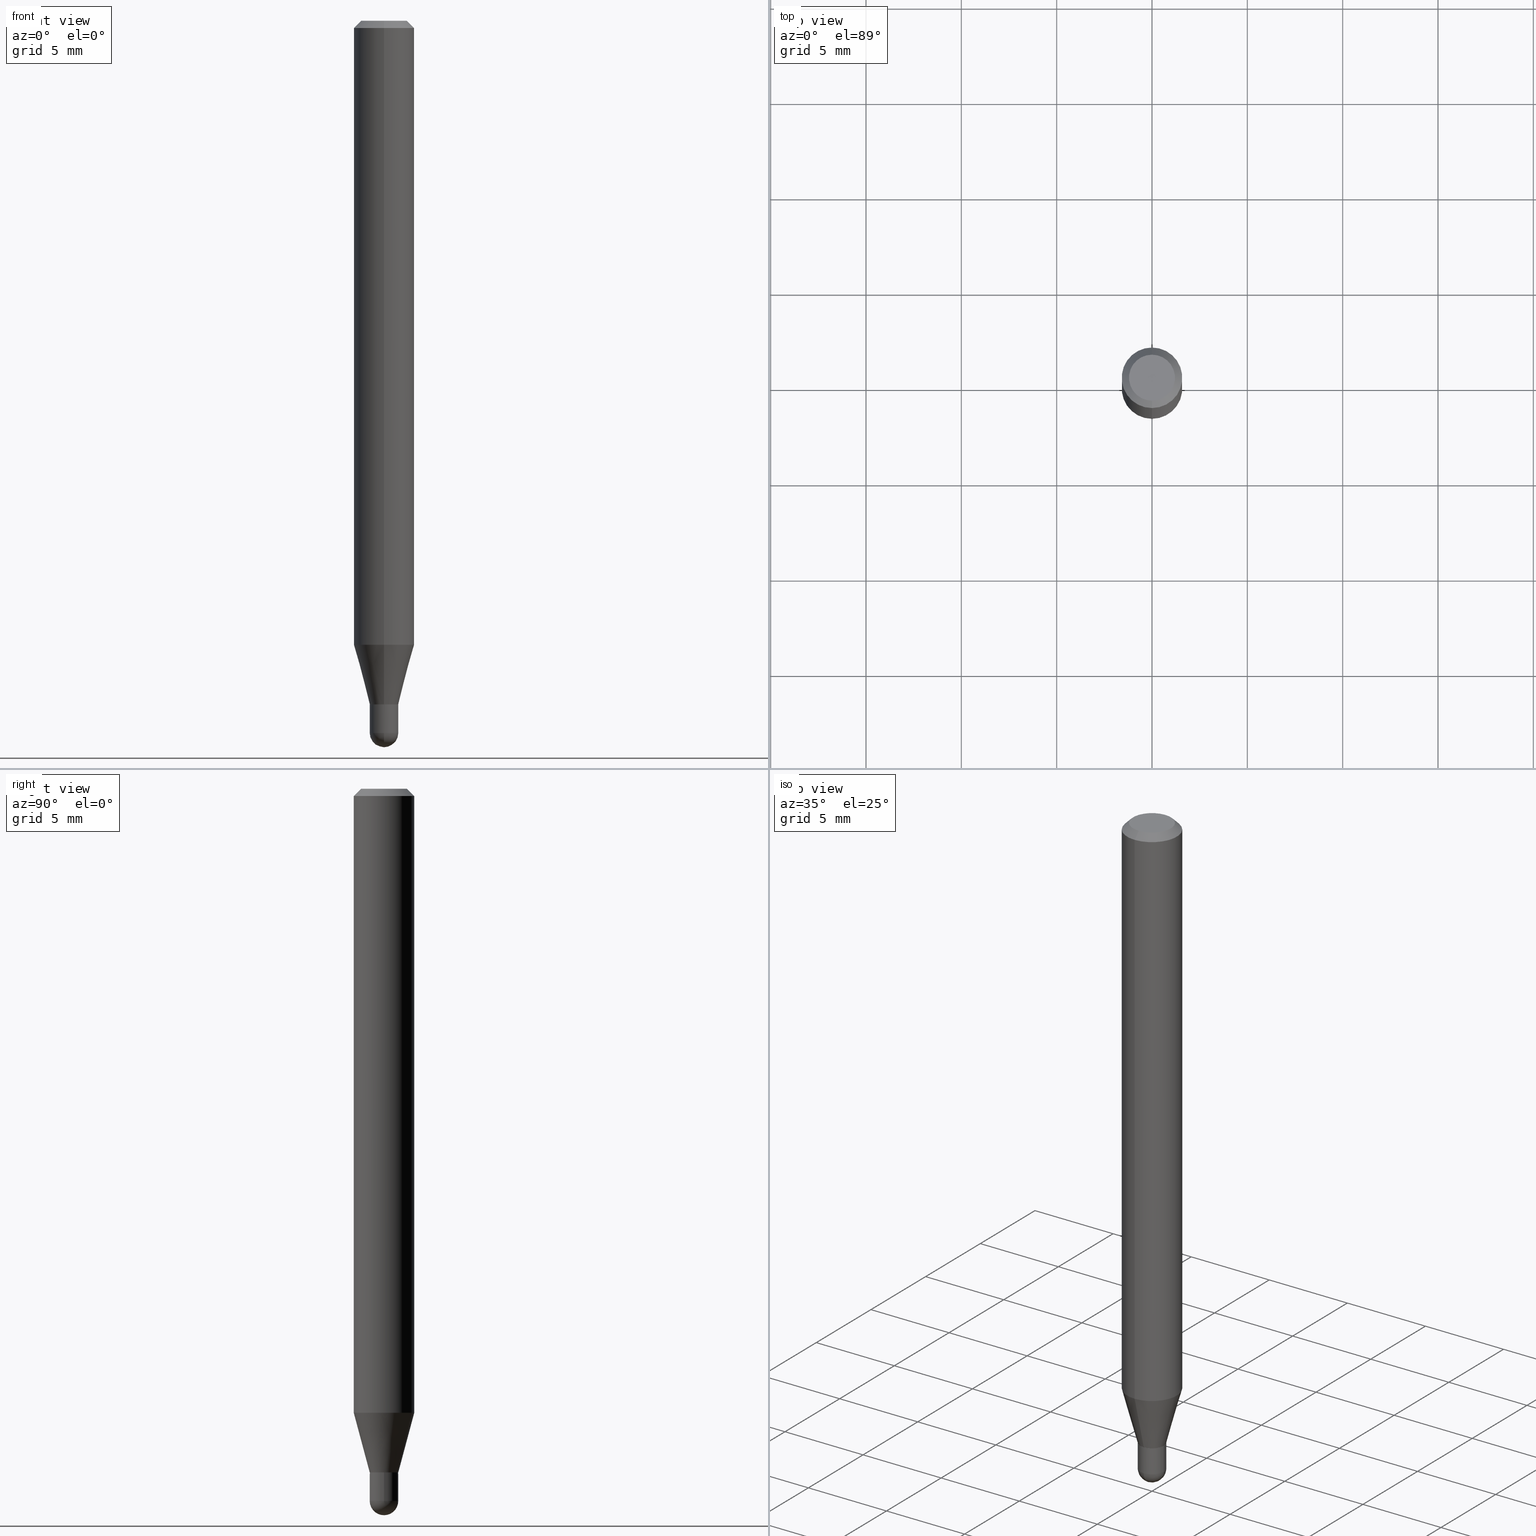
[diagram: canonical four-view strip — front | top / right | iso, engineering-drawing reading convention]
A machine part, canonical four-view strip (front | top / right | iso — engineering-drawing reading convention). The complete STEP part file that produces these views, byte-faithful:
ISO-10303-21;
HEADER;
FILE_DESCRIPTION (( 'STEP AP203' ),
    '1' );
FILE_NAME ('04371.STEP',
    '2024-03-08T18:57:13',
    ( '' ),
    ( '' ),
    'SwSTEP 2.0',
    'SolidWorks 2023',
    '' );
FILE_SCHEMA (( 'CONFIG_CONTROL_DESIGN' ));
ENDSEC;

DATA;
#1 = CARTESIAN_POINT ( 'NONE',  ( 3.596061879495243621E-29, -5.134223308768845522E-15, -1.470500000000000140 ) ) ;
#2 = ORIENTED_EDGE ( 'NONE', *, *, #370, .T. ) ;
#3 = DIRECTION ( 'NONE',  ( 1.000000000000000000, -6.982962677686266711E-15, 4.883557194083112340E-29 ) ) ;
#4 = EDGE_CURVE ( 'NONE', #276, #271, #92, .T. ) ;
#5 = LINE ( 'NONE', #504, #394 ) ;
#6 = CONICAL_SURFACE ( 'NONE', #285, 0.06250000000000000000, 0.7853981633974483900 ) ;
#7 = CARTESIAN_POINT ( 'NONE',  ( 3.596061879495243621E-29, -5.134223308768845522E-15, -1.470500000000000140 ) ) ;
#8 = CARTESIAN_POINT ( 'NONE',  ( 3.668225240666411791E-31, -5.237190458062187369E-17, -0.01500000000000006710 ) ) ;
#9 = DIRECTION ( 'NONE',  ( -1.000000000000000000, 6.982962677686265922E-15, -4.883557194083112340E-29 ) ) ;
#10 = AXIS2_PLACEMENT_3D ( 'NONE', #95, #404, #251 ) ;
#11 = DIRECTION ( 'NONE',  ( 7.105427357601000281E-15, 1.000000000000000000, 0.000000000000000000 ) ) ;
#12 = DIRECTION ( 'NONE',  ( -6.982962677686265922E-15, -1.000000000000000000, 4.370956789862821150E-15 ) ) ;
#13 = CARTESIAN_POINT ( 'NONE',  ( 3.451799951467078440E-29, -4.928196221036497538E-15, -1.411500000000000199 ) ) ;
#14 = APPROVAL_DATE_TIME ( #217, #174 ) ;
#15 = DIRECTION ( 'NONE',  ( 6.982962677686265922E-15, 1.000000000000000000, -3.491460305374776065E-15 ) ) ;
#16 = ORIENTED_EDGE ( 'NONE', *, *, #56, .T. ) ;
#17 = EDGE_LOOP ( 'NONE', ( #25, #2, #331, #28 ) ) ;
#18 = AXIS2_PLACEMENT_3D ( 'NONE', #336, #96, #65 ) ;
#19 = DIRECTION ( 'NONE',  ( -6.982962677686265133E-15, -1.000000000000000000, 0.000000000000000000 ) ) ;
#20 = PERSON_AND_ORGANIZATION_ROLE ( 'creator' ) ;
#21 = VECTOR ( 'NONE', #267, 39.37007874015748143 ) ;
#22 = EDGE_LOOP ( 'NONE', ( #160, #258, #391, #230 ) ) ;
#23 =( GEOMETRIC_REPRESENTATION_CONTEXT ( 3 ) GLOBAL_UNCERTAINTY_ASSIGNED_CONTEXT ( ( #411 ) ) GLOBAL_UNIT_ASSIGNED_CONTEXT ( ( #89, #252, #171 ) ) REPRESENTATION_CONTEXT ( 'NONE', 'WORKASPACE' ) );
#24 = EDGE_CURVE ( 'NONE', #117, #270, #162, .T. ) ;
#25 = ORIENTED_EDGE ( 'NONE', *, *, #101, .F. ) ;
#26 = CARTESIAN_POINT ( 'NONE',  ( -4.364351673553916201E-16, -0.06250000000000000000, 2.182162690859235287E-16 ) ) ;
#27 = APPROVAL ( #319, 'UNSPECIFIED' ) ;
#28 = ORIENTED_EDGE ( 'NONE', *, *, #368, .F. ) ;
#29 = AXIS2_PLACEMENT_3D ( 'NONE', #225, #461, #273 ) ;
#30 = MANIFOLD_SOLID_BREP ( 'Body-Move/Copy2[1]', #62 ) ;
#31 = CARTESIAN_POINT ( 'NONE',  ( 3.668225240666411791E-31, -5.237190458062187369E-17, -0.01500000000000006710 ) ) ;
#32 = DIRECTION ( 'NONE',  ( -2.445483493777596919E-29, 3.491460305374776065E-15, 1.000000000000000000 ) ) ;
#33 = DIRECTION ( 'NONE',  ( -1.000000000000000000, 6.982962677686265922E-15, -4.876176775795935793E-29 ) ) ;
#34 = MANIFOLD_SOLID_BREP ( 'Body-Move/Copy2[2]', #343 ) ;
#35 = CARTESIAN_POINT ( 'NONE',  ( 3.451799951467079561E-29, -4.928196221036499116E-15, -1.411500000000000421 ) ) ;
#36 = PRODUCT_RELATED_PRODUCT_CATEGORY ( 'detail', '', ( #105 ) ) ;
#37 = ORIENTED_EDGE ( 'NONE', *, *, #242, .F. ) ;
#38 = DIRECTION ( 'NONE',  ( 1.000000000000000000, -6.982962677686250933E-15, 0.000000000000000000 ) ) ;
#39 = AXIS2_PLACEMENT_3D ( 'NONE', #224, #508, #38 ) ;
#40 = DIRECTION ( 'NONE',  ( -1.807323732225378260E-15, -0.2588190451025250693, 0.9659258262890670910 ) ) ;
#41 = EDGE_CURVE ( 'NONE', #462, #142, #295, .T. ) ;
#42 = EDGE_CURVE ( 'NONE', #271, #148, #408, .T. ) ;
#43 = DIRECTION ( 'NONE',  ( -6.982962677686265922E-15, -1.000000000000000000, 3.491460305374776460E-15 ) ) ;
#44 = FACE_OUTER_BOUND ( 'NONE', #197, .T. ) ;
#45 = DIMENSIONAL_EXPONENTS ( 1.000000000000000000, 0.000000000000000000, 0.000000000000000000, 0.000000000000000000, 0.000000000000000000, 0.000000000000000000, 0.000000000000000000 ) ;
#46 = AXIS2_PLACEMENT_3D ( 'NONE', #327, #9, #98 ) ;
#47 = CC_DESIGN_APPROVAL ( #27, ( #338 ) ) ;
#48 = FACE_OUTER_BOUND ( 'NONE', #76, .T. ) ;
#49 = DIRECTION ( 'NONE',  ( -6.982962677686266711E-15, -1.000000000000000000, 0.000000000000000000 ) ) ;
#50 = EDGE_CURVE ( 'NONE', #386, #277, #507, .T. ) ;
#51 = CARTESIAN_POINT ( 'NONE',  ( -0.02950000000000000192, -4.821614502223743520E-15, -1.470500000000000140 ) ) ;
#52 = APPROVAL_ROLE ( '' ) ;
#53 = AXIS2_PLACEMENT_3D ( 'NONE', #211, #398, #330 ) ;
#54 = ORIENTED_EDGE ( 'NONE', *, *, #159, .F. ) ;
#55 = DATE_TIME_ROLE ( 'creation_date' ) ;
#56 = EDGE_CURVE ( 'NONE', #142, #238, #399, .T. ) ;
#57 = DIRECTION ( 'NONE',  ( -6.982962677686266711E-15, -1.000000000000000000, 0.000000000000000000 ) ) ;
#58 = CARTESIAN_POINT ( 'NONE',  ( 3.451799951467078440E-29, -4.928196221036497538E-15, -1.411500000000000199 ) ) ;
#59 = DATE_AND_TIME ( #333, #227 ) ;
#60 = VERTEX_POINT ( 'NONE', #444 ) ;
#61 = EDGE_CURVE ( 'NONE', #417, #238, #464, .T. ) ;
#62 = CLOSED_SHELL ( 'NONE', ( #167, #332, #426, #422, #134 ) ) ;
#63 = EDGE_LOOP ( 'NONE', ( #184, #500, #419, #125 ) ) ;
#64 = VECTOR ( 'NONE', #32, 39.37007874015748143 ) ;
#65 = DIRECTION ( 'NONE',  ( 1.000000000000000000, -6.982962677686250144E-15, 0.000000000000000000 ) ) ;
#66 = COORDINATED_UNIVERSAL_TIME_OFFSET ( 5, 0, .BEHIND. ) ;
#67 = VECTOR ( 'NONE', #135, 39.37007874015748143 ) ;
#68 = ORIENTED_EDGE ( 'NONE', *, *, #350, .T. ) ;
#69 = DIRECTION ( 'NONE',  ( -2.445483493777596919E-29, 3.491460305374776460E-15, 1.000000000000000000 ) ) ;
#70 = EDGE_CURVE ( 'NONE', #238, #241, #441, .T. ) ;
#71 = CYLINDRICAL_SURFACE ( 'NONE', #29, 0.02950000000000033151 ) ;
#72 = AXIS2_PLACEMENT_3D ( 'NONE', #304, #493, #130 ) ;
#73 = ORIENTED_EDGE ( 'NONE', *, *, #468, .F. ) ;
#74 = CARTESIAN_POINT ( 'NONE',  ( 4.440892098500942692E-16, 0.06249999999999995143, -0.01500000000000028394 ) ) ;
#75 = CARTESIAN_POINT ( 'NONE',  ( 2.059973989917793540E-16, 0.02949999999999506836, -1.411500000000000199 ) ) ;
#76 = EDGE_LOOP ( 'NONE', ( #501, #161, #347, #306 ) ) ;
#77 = APPLICATION_PROTOCOL_DEFINITION ( 'international standard', 'config_control_design', 1994, #269 ) ;
#78 = ADVANCED_FACE ( 'NONE', ( #469 ), #466, .T. ) ;
#79 = DIRECTION ( 'NONE',  ( -6.982962677686266711E-15, -1.000000000000000000, 0.000000000000000000 ) ) ;
#80 = ORIENTED_EDGE ( 'NONE', *, *, #41, .T. ) ;
#81 = CARTESIAN_POINT ( 'NONE',  ( 4.440892098500937762E-16, 0.06249999999999547584, -1.288342323350233132 ) ) ;
#82 = ORIENTED_EDGE ( 'NONE', *, *, #247, .F. ) ;
#83 = EDGE_LOOP ( 'NONE', ( #158, #473 ) ) ;
#84 = CARTESIAN_POINT ( 'NONE',  ( 0.000000000000000000, 0.000000000000000000, 0.000000000000000000 ) ) ;
#85 = AXIS2_PLACEMENT_3D ( 'NONE', #128, #349, #79 ) ;
#86 = EDGE_LOOP ( 'NONE', ( #189, #413, #231, #318 ) ) ;
#87 = DIRECTION ( 'NONE',  ( -6.982962677686266711E-15, -1.000000000000000000, 0.000000000000000000 ) ) ;
#88 = CARTESIAN_POINT ( 'NONE',  ( 0.000000000000000000, 0.000000000000000000, 0.000000000000000000 ) ) ;
#89 =( CONVERSION_BASED_UNIT ( 'INCH', #438 ) LENGTH_UNIT ( ) NAMED_UNIT ( #45 ) );
#90 = ADVANCED_BREP_SHAPE_REPRESENTATION ( '04371', ( #30, #34, #10 ), #23 ) ;
#91 = AXIS2_PLACEMENT_3D ( 'NONE', #448, #94, #470 ) ;
#92 = LINE ( 'NONE', #415, #274 ) ;
#93 = LOCAL_TIME ( 13, 57, 13.00000000000000000, #66 ) ;
#94 = DIRECTION ( 'NONE',  ( -2.445483493777596919E-29, 3.491460305374776460E-15, 1.000000000000000000 ) ) ;
#95 = CARTESIAN_POINT ( 'NONE',  ( 0.000000000000000000, 0.000000000000000000, 0.000000000000000000 ) ) ;
#96 = DIRECTION ( 'NONE',  ( -2.445468806185136597E-29, 3.491481338843145583E-15, 1.000000000000000000 ) ) ;
#97 = CARTESIAN_POINT ( 'NONE',  ( 3.593539138942164173E-29, -5.137836016826330348E-15, -1.470500000000000140 ) ) ;
#98 = DIRECTION ( 'NONE',  ( -6.982962677686265922E-15, -1.000000000000000000, 0.000000000000000000 ) ) ;
#99 = ADVANCED_FACE ( 'NONE', ( #48 ), #71, .F. ) ;
#100 = APPROVAL_DATE_TIME ( #141, #133 ) ;
#101 = EDGE_CURVE ( 'NONE', #145, #277, #425, .T. ) ;
#102 = AXIS2_PLACEMENT_3D ( 'NONE', #223, #256, #341 ) ;
#103 = VECTOR ( 'NONE', #369, 39.37007874015748143 ) ;
#104 = APPROVAL_STATUS ( 'not_yet_approved' ) ;
#105 = PRODUCT ( '04371', '04371', '', ( #388 ) ) ;
#106 = EDGE_LOOP ( 'NONE', ( #374, #420, #114, #228 ) ) ;
#107 = DIRECTION ( 'NONE',  ( 1.000000000000000000, -6.982962677686266711E-15, 4.883557194083112340E-29 ) ) ;
#108 = CYLINDRICAL_SURFACE ( 'NONE', #335, 0.06250000000000000000 ) ;
#109 = DIRECTION ( 'NONE',  ( -2.445483493777596919E-29, 3.491460305374776460E-15, 1.000000000000000000 ) ) ;
#110 = CALENDAR_DATE ( 2024, 8, 3 ) ;
#111 = VERTEX_POINT ( 'NONE', #196 ) ;
#112 = CARTESIAN_POINT ( 'NONE',  ( -4.364351673553603615E-16, -0.06250000000000453804, -1.288342323350232688 ) ) ;
#113 = CIRCLE ( 'NONE', #85, 0.02950000000000046682 ) ;
#114 = ORIENTED_EDGE ( 'NONE', *, *, #56, .F. ) ;
#115 = ORIENTED_EDGE ( 'NONE', *, *, #261, .T. ) ;
#116 = CARTESIAN_POINT ( 'NONE',  ( 0.02949999999999999845, -5.134223308768844733E-15, -1.411500000000000199 ) ) ;
#117 = VERTEX_POINT ( 'NONE', #191 ) ;
#118 = EDGE_CURVE ( 'NONE', #111, #276, #113, .T. ) ;
#119 = ORIENTED_EDGE ( 'NONE', *, *, #370, .F. ) ;
#120 = DIRECTION ( 'NONE',  ( -6.982962677686266711E-15, -1.000000000000000000, 0.000000000000000000 ) ) ;
#121 = DIRECTION ( 'NONE',  ( -2.445483493777596919E-29, 3.491460305374776460E-15, 1.000000000000000000 ) ) ;
#122 = CARTESIAN_POINT ( 'NONE',  ( 3.668225240666411791E-31, -5.237190458062187369E-17, -0.01500000000000006710 ) ) ;
#123 = ORIENTED_EDGE ( 'NONE', *, *, #201, .T. ) ;
#124 = EDGE_CURVE ( 'NONE', #142, #299, #5, .T. ) ;
#125 = ORIENTED_EDGE ( 'NONE', *, *, #201, .F. ) ;
#126 = FACE_OUTER_BOUND ( 'NONE', #284, .T. ) ;
#127 = DIRECTION ( 'NONE',  ( -2.445483493777596919E-29, 3.491460305374776460E-15, 1.000000000000000000 ) ) ;
#128 = CARTESIAN_POINT ( 'NONE',  ( 3.451799951467078440E-29, -4.928196221036497538E-15, -1.411500000000000199 ) ) ;
#129 = AXIS2_PLACEMENT_3D ( 'NONE', #88, #208, #43 ) ;
#130 = DIRECTION ( 'NONE',  ( -6.982962677686265922E-15, -1.000000000000000000, 0.000000000000000000 ) ) ;
#131 = CARTESIAN_POINT ( 'NONE',  ( 3.451799951467079561E-29, -4.928196221036499116E-15, -1.411500000000000421 ) ) ;
#132 = CARTESIAN_POINT ( 'NONE',  ( 3.593539138942164173E-29, -5.137836016826330348E-15, -1.470500000000000140 ) ) ;
#133 = APPROVAL ( #104, 'UNSPECIFIED' ) ;
#134 = ADVANCED_FACE ( 'NONE', ( #389 ), #509, .T. ) ;
#135 = DIRECTION ( 'NONE',  ( -2.445483493777596919E-29, 3.491460305374776065E-15, 1.000000000000000000 ) ) ;
#136 = EDGE_CURVE ( 'NONE', #241, #462, #326, .T. ) ;
#137 = SPHERICAL_SURFACE ( 'NONE', #296, 0.02950000000000002967 ) ;
#138 = DIRECTION ( 'NONE',  ( -6.982962677686265922E-15, -1.000000000000000000, 3.491460305374776065E-15 ) ) ;
#139 = AXIS2_PLACEMENT_3D ( 'NONE', #122, #109, #354 ) ;
#140 = LOCAL_TIME ( 13, 57, 13.00000000000000000, #337 ) ;
#141 = DATE_AND_TIME ( #221, #93 ) ;
#142 = VERTEX_POINT ( 'NONE', #502 ) ;
#143 = ADVANCED_FACE ( 'NONE', ( #463 ), #385, .T. ) ;
#144 = DATE_AND_TIME ( #492, #140 ) ;
#145 = VERTEX_POINT ( 'NONE', #81 ) ;
#146 = DIRECTION ( 'NONE',  ( -2.445483493777596919E-29, 3.491460305374776065E-15, 1.000000000000000000 ) ) ;
#147 = CIRCLE ( 'NONE', #91, 0.06250000000000000000 ) ;
#148 = VERTEX_POINT ( 'NONE', #234 ) ;
#149 = DIRECTION ( 'NONE',  ( -6.982962677686266711E-15, -1.000000000000000000, 3.491460305374776854E-15 ) ) ;
#150 = ORIENTED_EDGE ( 'NONE', *, *, #42, .F. ) ;
#151 = CARTESIAN_POINT ( 'NONE',  ( 2.078337502098644454E-16, 0.02899999999999506792, -1.411500000000000421 ) ) ;
#152 = EDGE_CURVE ( 'NONE', #270, #117, #265, .T. ) ;
#153 = ORIENTED_EDGE ( 'NONE', *, *, #361, .T. ) ;
#154 = PERSON_AND_ORGANIZATION ( #481, #180 ) ;
#155 = ORIENTED_EDGE ( 'NONE', *, *, #50, .F. ) ;
#156 = AXIS2_PLACEMENT_3D ( 'NONE', #97, #245, #11 ) ;
#157 = AXIS2_PLACEMENT_3D ( 'NONE', #405, #255, #12 ) ;
#158 = ORIENTED_EDGE ( 'NONE', *, *, #24, .F. ) ;
#159 = EDGE_CURVE ( 'NONE', #111, #362, #358, .T. ) ;
#160 = ORIENTED_EDGE ( 'NONE', *, *, #61, .F. ) ;
#161 = ORIENTED_EDGE ( 'NONE', *, *, #4, .T. ) ;
#162 = CIRCLE ( 'NONE', #453, 0.02899999999999999800 ) ;
#163 = AXIS2_PLACEMENT_3D ( 'NONE', #35, #353, #278 ) ;
#164 = LOCAL_TIME ( 13, 57, 13.00000000000000000, #263 ) ;
#165 = FACE_OUTER_BOUND ( 'NONE', #512, .T. ) ;
#166 = DIRECTION ( 'NONE',  ( 2.445483493777596919E-29, -3.491460305374776460E-15, -1.000000000000000000 ) ) ;
#167 = ADVANCED_FACE ( 'NONE', ( #126 ), #195, .T. ) ;
#168 = DIRECTION ( 'NONE',  ( 2.445483493777596919E-29, -3.491460305374776460E-15, -1.000000000000000000 ) ) ;
#169 = PLANE ( 'NONE',  #344 ) ;
#170 = CARTESIAN_POINT ( 'NONE',  ( 2.096101070492673598E-16, 0.02949999999999553674, -1.411500000000000199 ) ) ;
#171 =( NAMED_UNIT ( * ) SI_UNIT ( $, .STERADIAN. ) SOLID_ANGLE_UNIT ( ) );
#172 = LINE ( 'NONE', #170, #257 ) ;
#173 = AXIS2_PLACEMENT_3D ( 'NONE', #397, #232, #149 ) ;
#174 = APPROVAL ( #376, 'UNSPECIFIED' ) ;
#175 = COORDINATED_UNIVERSAL_TIME_OFFSET ( 5, 0, .BEHIND. ) ;
#176 = COORDINATED_UNIVERSAL_TIME_OFFSET ( 5, 0, .BEHIND. ) ;
#177 = EDGE_LOOP ( 'NONE', ( #293, #313, #155, #447 ) ) ;
#178 = AXIS2_PLACEMENT_3D ( 'NONE', #7, #243, #372 ) ;
#179 = CIRCLE ( 'NONE', #139, 0.06250000000000000000 ) ;
#180 = ORGANIZATION ( 'UNSPECIFIED', 'UNSPECIFIED', '' ) ;
#181 = CALENDAR_DATE ( 2024, 8, 3 ) ;
#182 = FACE_OUTER_BOUND ( 'NONE', #22, .T. ) ;
#183 = ORIENTED_EDGE ( 'NONE', *, *, #325, .T. ) ;
#184 = ORIENTED_EDGE ( 'NONE', *, *, #286, .F. ) ;
#185 = LINE ( 'NONE', #439, #289 ) ;
#186 = VECTOR ( 'NONE', #457, 39.37007874015748143 ) ;
#187 = ORIENTED_EDGE ( 'NONE', *, *, #247, .T. ) ;
#188 = EDGE_CURVE ( 'NONE', #270, #271, #380, .T. ) ;
#189 = ORIENTED_EDGE ( 'NONE', *, *, #4, .F. ) ;
#190 = DIRECTION ( 'NONE',  ( 1.000000000000000000, -6.982962677686250144E-15, 0.000000000000000000 ) ) ;
#191 = CARTESIAN_POINT ( 'NONE',  ( -2.025059176528671736E-16, -0.02900000000000492809, -1.411500000000000421 ) ) ;
#192 = FACE_OUTER_BOUND ( 'NONE', #177, .T. ) ;
#193 = DIRECTION ( 'NONE',  ( -2.445468806185136597E-29, 3.491481338843145583E-15, 1.000000000000000000 ) ) ;
#194 = DIRECTION ( 'NONE',  ( -2.445483493777596919E-29, 3.491460305374776460E-15, 1.000000000000000000 ) ) ;
#195 = CYLINDRICAL_SURFACE ( 'NONE', #497, 0.02950000000000000192 ) ;
#196 = CARTESIAN_POINT ( 'NONE',  ( -2.059973989917136074E-16, -0.02950000000000539691, -1.411500000000000199 ) ) ;
#197 = EDGE_LOOP ( 'NONE', ( #73, #68, #215, #119 ) ) ;
#198 = APPLICATION_PROTOCOL_DEFINITION ( 'international standard', 'config_control_design', 1994, #222 ) ;
#199 = LINE ( 'NONE', #328, #67 ) ;
#200 = AXIS2_PLACEMENT_3D ( 'NONE', #8, #396, #360 ) ;
#201 = EDGE_CURVE ( 'NONE', #496, #277, #427, .T. ) ;
#202 = AXIS2_PLACEMENT_3D ( 'NONE', #131, #287, #244 ) ;
#203 = DESIGN_CONTEXT ( 'detailed design', #222, 'design' ) ;
#204 = CARTESIAN_POINT ( 'NONE',  ( 2.096101070492656095E-16, 0.02949999999999488101, -1.470500000000000140 ) ) ;
#205 = DIRECTION ( 'NONE',  ( 6.982962677686265922E-15, 1.000000000000000000, -3.483106191921935554E-15 ) ) ;
#206 = ADVANCED_FACE ( 'NONE', ( #44 ), #275, .T. ) ;
#207 = FACE_OUTER_BOUND ( 'NONE', #383, .T. ) ;
#208 = DIRECTION ( 'NONE',  ( -2.445483493777596919E-29, 3.491460305374776460E-15, 1.000000000000000000 ) ) ;
#209 = SPHERICAL_SURFACE ( 'NONE', #410, 0.02950000000000002967 ) ;
#210 = PERSON_AND_ORGANIZATION_ROLE ( 'design_supplier' ) ;
#211 = CARTESIAN_POINT ( 'NONE',  ( 3.451779219930320513E-29, -4.928225909777100212E-15, -1.411500000000000199 ) ) ;
#212 = AXIS2_PLACEMENT_3D ( 'NONE', #58, #216, #120 ) ;
#213 = CARTESIAN_POINT ( 'NONE',  ( 3.668225240666411791E-31, -5.237190458062187369E-17, -0.01500000000000006710 ) ) ;
#214 = DIRECTION ( 'NONE',  ( 2.445483493777596919E-29, -3.491460305374776065E-15, -1.000000000000000000 ) ) ;
#215 = ORIENTED_EDGE ( 'NONE', *, *, #159, .T. ) ;
#216 = DIRECTION ( 'NONE',  ( -2.445483493777596919E-29, 3.491460305374776460E-15, 1.000000000000000000 ) ) ;
#217 = DATE_AND_TIME ( #110, #164 ) ;
#218 = CC_DESIGN_PERSON_AND_ORGANIZATION_ASSIGNMENT ( #487, #451, ( #249 ) ) ;
#219 = AXIS2_PLACEMENT_3D ( 'NONE', #294, #193, #352 ) ;
#220 = VECTOR ( 'NONE', #40, 39.37007874015748854 ) ;
#221 = CALENDAR_DATE ( 2024, 8, 3 ) ;
#222 = APPLICATION_CONTEXT ( 'configuration controlled 3d designs of mechanical parts and assemblies' ) ;
#223 = CARTESIAN_POINT ( 'NONE',  ( 3.450577209720190126E-29, -4.926450490883810691E-15, -1.411000000000000254 ) ) ;
#224 = CARTESIAN_POINT ( 'NONE',  ( 3.451779219930320513E-29, -4.928225909777100212E-15, -1.411500000000000199 ) ) ;
#225 = CARTESIAN_POINT ( 'NONE',  ( 0.000000000000000000, 0.000000000000000000, 0.000000000000000000 ) ) ;
#226 = CIRCLE ( 'NONE', #39, 0.02949999999999999845 ) ;
#227 = LOCAL_TIME ( 13, 57, 13.00000000000000000, #176 ) ;
#228 = ORIENTED_EDGE ( 'NONE', *, *, #41, .F. ) ;
#229 = FACE_OUTER_BOUND ( 'NONE', #63, .T. ) ;
#230 = ORIENTED_EDGE ( 'NONE', *, *, #70, .F. ) ;
#231 = ORIENTED_EDGE ( 'NONE', *, *, #480, .T. ) ;
#232 = DIRECTION ( 'NONE',  ( -2.445483493777596919E-29, 3.491460305374776460E-15, 1.000000000000000000 ) ) ;
#233 = EDGE_LOOP ( 'NONE', ( #357, #495, #456, #54 ) ) ;
#234 = CARTESIAN_POINT ( 'NONE',  ( -2.059973989917123994E-16, -0.02950000000000522343, -1.411000000000000254 ) ) ;
#235 = CARTESIAN_POINT ( 'NONE',  ( 0.000000000000000000, 0.000000000000000000, 0.000000000000000000 ) ) ;
#236 = VERTEX_POINT ( 'NONE', #322 ) ;
#237 = AXIS2_PLACEMENT_3D ( 'NONE', #503, #121, #279 ) ;
#238 = VERTEX_POINT ( 'NONE', #204 ) ;
#239 = CARTESIAN_POINT ( 'NONE',  ( 0.000000000000000000, 0.000000000000000000, 0.000000000000000000 ) ) ;
#240 = LINE ( 'NONE', #363, #320 ) ;
#241 = VERTEX_POINT ( 'NONE', #51 ) ;
#242 = EDGE_CURVE ( 'NONE', #236, #386, #240, .T. ) ;
#243 = DIRECTION ( 'NONE',  ( -2.445468806185136597E-29, 3.491481338843145583E-15, 1.000000000000000000 ) ) ;
#244 = DIRECTION ( 'NONE',  ( -6.982962677686265133E-15, -1.000000000000000000, 0.000000000000000000 ) ) ;
#245 = DIRECTION ( 'NONE',  ( 1.000000000000000000, -7.105427357601001070E-15, 4.926315508542082329E-29 ) ) ;
#246 = AXIS2_PLACEMENT_3D ( 'NONE', #392, #194, #312 ) ;
#247 = EDGE_CURVE ( 'NONE', #496, #236, #308, .T. ) ;
#248 = DIRECTION ( 'NONE',  ( -4.937700262164674260E-15, -0.7071067811865632269, 0.7071067811865319186 ) ) ;
#249 = PRODUCT_DEFINITION_FORMATION_WITH_SPECIFIED_SOURCE ( 'ANY', '', #105, .NOT_KNOWN. ) ;
#250 = DIRECTION ( 'NONE',  ( 1.839019923739649225E-15, 0.2588190451025318417, 0.9659258262890653146 ) ) ;
#251 = DIRECTION ( 'NONE',  ( 1.000000000000000000, 0.000000000000000000, 0.000000000000000000 ) ) ;
#252 =( NAMED_UNIT ( * ) PLANE_ANGLE_UNIT ( ) SI_UNIT ( $, .RADIAN. ) );
#253 = SHAPE_DEFINITION_REPRESENTATION ( #440, #90 ) ;
#254 = CIRCLE ( 'NONE', #46, 0.02950000000000002967 ) ;
#255 = DIRECTION ( 'NONE',  ( -2.445483493777596919E-29, 3.491460305374776460E-15, 1.000000000000000000 ) ) ;
#256 = DIRECTION ( 'NONE',  ( -2.445483493777596919E-29, 3.491460305374776460E-15, 1.000000000000000000 ) ) ;
#257 = VECTOR ( 'NONE', #250, 39.37007874015748143 ) ;
#258 = ORIENTED_EDGE ( 'NONE', *, *, #317, .T. ) ;
#259 = FACE_OUTER_BOUND ( 'NONE', #233, .T. ) ;
#260 = DATE_TIME_ROLE ( 'classification_date' ) ;
#261 = EDGE_CURVE ( 'NONE', #241, #60, #282, .T. ) ;
#262 = CARTESIAN_POINT ( 'NONE',  ( 0.000000000000000000, 0.000000000000000000, 0.000000000000000000 ) ) ;
#263 = COORDINATED_UNIVERSAL_TIME_OFFSET ( 5, 0, .BEHIND. ) ;
#264 = ORIENTED_EDGE ( 'NONE', *, *, #368, .T. ) ;
#265 = CIRCLE ( 'NONE', #246, 0.02899999999999999800 ) ;
#266 = CC_DESIGN_APPROVAL ( #133, ( #309 ) ) ;
#267 = DIRECTION ( 'NONE',  ( 4.937700262164548042E-15, 0.7071067811865451302, -0.7071067811865499042 ) ) ;
#268 = EDGE_CURVE ( 'NONE', #299, #60, #226, .T. ) ;
#269 = APPLICATION_CONTEXT ( 'configuration controlled 3d designs of mechanical parts and assemblies' ) ;
#270 = VERTEX_POINT ( 'NONE', #151 ) ;
#271 = VERTEX_POINT ( 'NONE', #472 ) ;
#272 = DIRECTION ( 'NONE',  ( 1.000000000000000000, -6.982962677686265922E-15, 4.876176775795935793E-29 ) ) ;
#273 = DIRECTION ( 'NONE',  ( -6.982962677686265922E-15, -1.000000000000000000, 3.491460305374776854E-15 ) ) ;
#274 = VECTOR ( 'NONE', #146, 39.37007874015748143 ) ;
#275 = CONICAL_SURFACE ( 'NONE', #511, 0.02950000000000046682, 0.2617993877991574014 ) ;
#276 = VERTEX_POINT ( 'NONE', #348 ) ;
#277 = VERTEX_POINT ( 'NONE', #74 ) ;
#278 = DIRECTION ( 'NONE',  ( -6.982962677686265133E-15, -1.000000000000000000, 0.000000000000000000 ) ) ;
#279 = DIRECTION ( 'NONE',  ( -6.982962677686266711E-15, -1.000000000000000000, 3.491460305374776854E-15 ) ) ;
#280 = FACE_OUTER_BOUND ( 'NONE', #83, .T. ) ;
#281 = CARTESIAN_POINT ( 'NONE',  ( -4.364351673553912750E-16, -0.06250000000000005551, -0.01499999999999984852 ) ) ;
#282 = LINE ( 'NONE', #499, #186 ) ;
#283 = CARTESIAN_POINT ( 'NONE',  ( 4.440892098500625669E-16, 0.06250000000000000000, -2.182162690859235287E-16 ) ) ;
#284 = EDGE_LOOP ( 'NONE', ( #510, #115, #424, #494, #16 ) ) ;
#285 = AXIS2_PLACEMENT_3D ( 'NONE', #31, #166, #205 ) ;
#286 = EDGE_CURVE ( 'NONE', #236, #496, #454, .T. ) ;
#287 = DIRECTION ( 'NONE',  ( -2.445483493777596919E-29, 3.491460305374776460E-15, 1.000000000000000000 ) ) ;
#288 = CC_DESIGN_DATE_AND_TIME_ASSIGNMENT ( #407, #260, ( #309 ) ) ;
#289 = VECTOR ( 'NONE', #248, 39.37007874015748143 ) ;
#290 = AXIS2_PLACEMENT_3D ( 'NONE', #314, #395, #138 ) ;
#291 = PLANE ( 'NONE',  #478 ) ;
#292 = CARTESIAN_POINT ( 'NONE',  ( -2.059973989917090221E-16, -0.02950000000000515057, -1.470500000000000140 ) ) ;
#293 = ORIENTED_EDGE ( 'NONE', *, *, #390, .T. ) ;
#294 = CARTESIAN_POINT ( 'NONE',  ( 3.596061879495243621E-29, -5.134223308768845522E-15, -1.470500000000000140 ) ) ;
#295 = CIRCLE ( 'NONE', #18, 0.02950000000000000192 ) ;
#296 = AXIS2_PLACEMENT_3D ( 'NONE', #449, #107, #416 ) ;
#297 = FACE_OUTER_BOUND ( 'NONE', #17, .T. ) ;
#298 = SECURITY_CLASSIFICATION_LEVEL ( 'unclassified' ) ;
#299 = VERTEX_POINT ( 'NONE', #116 ) ;
#300 = CIRCLE ( 'NONE', #53, 0.02949999999999999845 ) ;
#301 = APPROVAL_PERSON_ORGANIZATION ( #373, #174, #339 ) ;
#302 = EDGE_LOOP ( 'NONE', ( #491, #310, #153, #150 ) ) ;
#303 = ORIENTED_EDGE ( 'NONE', *, *, #329, .F. ) ;
#304 = CARTESIAN_POINT ( 'NONE',  ( 3.450577209720190126E-29, -4.926450490883810691E-15, -1.411000000000000254 ) ) ;
#305 = DIRECTION ( 'NONE',  ( -2.445468806185136877E-29, 3.491481338843145188E-15, 1.000000000000000000 ) ) ;
#306 = ORIENTED_EDGE ( 'NONE', *, *, #480, .F. ) ;
#307 = ADVANCED_FACE ( 'NONE', ( #229 ), #6, .T. ) ;
#308 = CIRCLE ( 'NONE', #173, 0.04749999999999999362 ) ;
#309 = SECURITY_CLASSIFICATION ( '', '', #298 ) ;
#310 = ORIENTED_EDGE ( 'NONE', *, *, #152, .T. ) ;
#311 = CARTESIAN_POINT ( 'NONE',  ( -2.059973989917136074E-16, -0.02950000000000539691, -1.411500000000000199 ) ) ;
#312 = DIRECTION ( 'NONE',  ( -6.982962677686265133E-15, -1.000000000000000000, 0.000000000000000000 ) ) ;
#313 = ORIENTED_EDGE ( 'NONE', *, *, #101, .T. ) ;
#314 = CARTESIAN_POINT ( 'NONE',  ( 3.451799951467079561E-29, -4.928196221036499116E-15, -1.411500000000000421 ) ) ;
#315 = DIRECTION ( 'NONE',  ( -2.445483493777596919E-29, 3.491460305374776460E-15, 1.000000000000000000 ) ) ;
#316 = CARTESIAN_POINT ( 'NONE',  ( 3.451799951467078440E-29, -4.928196221036497538E-15, -1.411500000000000199 ) ) ;
#317 = EDGE_CURVE ( 'NONE', #417, #462, #254, .T. ) ;
#318 = ORIENTED_EDGE ( 'NONE', *, *, #329, .T. ) ;
#319 = APPROVAL_STATUS ( 'not_yet_approved' ) ;
#320 = VECTOR ( 'NONE', #324, 39.37007874015748143 ) ;
#321 = LOCAL_TIME ( 13, 57, 13.00000000000000000, #175 ) ;
#322 = CARTESIAN_POINT ( 'NONE',  ( -3.773273898774340269E-16, -0.04749999999999999362, 1.003431313631581380E-16 ) ) ;
#323 = CARTESIAN_POINT ( 'NONE',  ( 3.316907271900976096E-16, 0.04749999999999999362, -1.985949810763737402E-16 ) ) ;
#324 = DIRECTION ( 'NONE',  ( -4.851104656540964275E-15, -0.7071067811865500152, -0.7071067811865450192 ) ) ;
#325 = EDGE_CURVE ( 'NONE', #60, #299, #300, .T. ) ;
#326 = CIRCLE ( 'NONE', #488, 0.02950000000000000192 ) ;
#327 = CARTESIAN_POINT ( 'NONE',  ( 3.593539138942164173E-29, -5.137836016826330348E-15, -1.470500000000000140 ) ) ;
#328 = CARTESIAN_POINT ( 'NONE',  ( -2.059973989917471586E-16, -0.02950000000000033151, 1.029980790085570731E-16 ) ) ;
#329 = EDGE_CURVE ( 'NONE', #148, #271, #334, .T. ) ;
#330 = DIRECTION ( 'NONE',  ( 1.000000000000000000, -6.982962677686250933E-15, 0.000000000000000000 ) ) ;
#331 = ORIENTED_EDGE ( 'NONE', *, *, #455, .T. ) ;
#332 = ADVANCED_FACE ( 'NONE', ( #382 ), #137, .T. ) ;
#333 = CALENDAR_DATE ( 2024, 8, 3 ) ;
#334 = CIRCLE ( 'NONE', #102, 0.02950000000000019620 ) ;
#335 = AXIS2_PLACEMENT_3D ( 'NONE', #262, #69, #489 ) ;
#336 = CARTESIAN_POINT ( 'NONE',  ( 3.596061879495243621E-29, -5.134223308768845522E-15, -1.470500000000000140 ) ) ;
#337 = COORDINATED_UNIVERSAL_TIME_OFFSET ( 5, 0, .BEHIND. ) ;
#338 = PRODUCT_DEFINITION ( 'UNKNOWN', '', #249, #203 ) ;
#339 = APPROVAL_ROLE ( '' ) ;
#340 = ORIENTED_EDGE ( 'NONE', *, *, #261, .F. ) ;
#341 = DIRECTION ( 'NONE',  ( -6.982962677686265922E-15, -1.000000000000000000, 0.000000000000000000 ) ) ;
#342 = EDGE_LOOP ( 'NONE', ( #465, #435, #303, #351 ) ) ;
#343 = CLOSED_SHELL ( 'NONE', ( #99, #143, #307, #443, #490, #206, #402, #483, #406, #486, #78, #387 ) ) ;
#344 = AXIS2_PLACEMENT_3D ( 'NONE', #323, #214, #15 ) ;
#345 = APPROVAL_PERSON_ORGANIZATION ( #418, #133, #52 ) ;
#346 = ORIENTED_EDGE ( 'NONE', *, *, #136, .T. ) ;
#347 = ORIENTED_EDGE ( 'NONE', *, *, #42, .T. ) ;
#348 = CARTESIAN_POINT ( 'NONE',  ( 3.268496584496807899E-16, 0.02949999999999553674, -1.411500000000000199 ) ) ;
#349 = DIRECTION ( 'NONE',  ( -2.445483493777596919E-29, 3.491460305374776460E-15, 1.000000000000000000 ) ) ;
#350 = EDGE_CURVE ( 'NONE', #276, #111, #400, .T. ) ;
#351 = ORIENTED_EDGE ( 'NONE', *, *, #361, .F. ) ;
#352 = DIRECTION ( 'NONE',  ( 1.000000000000000000, -6.982962677686250144E-15, 0.000000000000000000 ) ) ;
#353 = DIRECTION ( 'NONE',  ( -2.445483493777596919E-29, 3.491460305374776460E-15, 1.000000000000000000 ) ) ;
#354 = DIRECTION ( 'NONE',  ( -6.982962677686265922E-15, -1.000000000000000000, 3.483106191921935554E-15 ) ) ;
#355 = VECTOR ( 'NONE', #384, 39.37007874015748143 ) ;
#356 = DIRECTION ( 'NONE',  ( 2.438088387897960049E-29, -3.491481338843145188E-15, -1.000000000000000000 ) ) ;
#357 = ORIENTED_EDGE ( 'NONE', *, *, #118, .T. ) ;
#358 = LINE ( 'NONE', #311, #220 ) ;
#359 = CARTESIAN_POINT ( 'NONE',  ( 3.451799951467079561E-29, -4.928196221036499116E-15, -1.411500000000000421 ) ) ;
#360 = DIRECTION ( 'NONE',  ( -6.982962677686265922E-15, -1.000000000000000000, 3.483106191921935554E-15 ) ) ;
#361 = EDGE_CURVE ( 'NONE', #117, #148, #185, .T. ) ;
#362 = VERTEX_POINT ( 'NONE', #112 ) ;
#363 = CARTESIAN_POINT ( 'NONE',  ( -4.287811248607203282E-16, -0.06250000000000005551, -0.01499999999999984852 ) ) ;
#364 = PERSON_AND_ORGANIZATION_ROLE ( 'design_owner' ) ;
#365 = FACE_OUTER_BOUND ( 'NONE', #430, .T. ) ;
#366 = AXIS2_PLACEMENT_3D ( 'NONE', #13, #414, #57 ) ;
#367 = APPROVAL_PERSON_ORGANIZATION ( #475, #27, #436 ) ;
#368 = EDGE_CURVE ( 'NONE', #277, #386, #179, .T. ) ;
#369 = DIRECTION ( 'NONE',  ( -2.445483493777596919E-29, 3.491460305374776065E-15, 1.000000000000000000 ) ) ;
#370 = EDGE_CURVE ( 'NONE', #145, #362, #147, .T. ) ;
#371 = CARTESIAN_POINT ( 'NONE',  ( 3.664419098448086283E-29, -5.242641070350945415E-15, -1.500000000000000222 ) ) ;
#372 = DIRECTION ( 'NONE',  ( 1.000000000000000000, -6.982962677686250144E-15, 0.000000000000000000 ) ) ;
#373 = PERSON_AND_ORGANIZATION ( #481, #180 ) ;
#374 = ORIENTED_EDGE ( 'NONE', *, *, #317, .F. ) ;
#375 = DIRECTION ( 'NONE',  ( -2.445483493777596919E-29, 3.491460305374776460E-15, 1.000000000000000000 ) ) ;
#376 = APPROVAL_STATUS ( 'not_yet_approved' ) ;
#377 = ORIENTED_EDGE ( 'NONE', *, *, #325, .F. ) ;
#378 = CARTESIAN_POINT ( 'NONE',  ( 2.060573933704635277E-16, 0.02899999999999506792, -1.411500000000000421 ) ) ;
#379 = CC_DESIGN_SECURITY_CLASSIFICATION ( #309, ( #249 ) ) ;
#380 = LINE ( 'NONE', #378, #355 ) ;
#381 = LINE ( 'NONE', #26, #103 ) ;
#382 = FACE_OUTER_BOUND ( 'NONE', #106, .T. ) ;
#383 = EDGE_LOOP ( 'NONE', ( #37, #82, #123, #264 ) ) ;
#384 = DIRECTION ( 'NONE',  ( 5.024295867788190974E-15, 0.7071067811865681119, 0.7071067811865270336 ) ) ;
#385 = CONICAL_SURFACE ( 'NONE', #163, 0.02899999999999999800, 0.7853981633974739252 ) ;
#386 = VERTEX_POINT ( 'NONE', #281 ) ;
#387 = ADVANCED_FACE ( 'NONE', ( #431 ), #460, .F. ) ;
#388 = MECHANICAL_CONTEXT ( 'NONE', #269, 'mechanical' ) ;
#389 = FACE_OUTER_BOUND ( 'NONE', #505, .T. ) ;
#390 = EDGE_CURVE ( 'NONE', #362, #145, #432, .T. ) ;
#391 = ORIENTED_EDGE ( 'NONE', *, *, #136, .F. ) ;
#392 = CARTESIAN_POINT ( 'NONE',  ( 3.451799951467079561E-29, -4.928196221036499116E-15, -1.411500000000000421 ) ) ;
#393 = CC_DESIGN_PERSON_AND_ORGANIZATION_ASSIGNMENT ( #446, #412, ( #309 ) ) ;
#394 = VECTOR ( 'NONE', #305, 39.37007874015748143 ) ;
#395 = DIRECTION ( 'NONE',  ( -2.445483493777596919E-29, 3.491460305374776065E-15, 1.000000000000000000 ) ) ;
#396 = DIRECTION ( 'NONE',  ( -2.445483493777596919E-29, 3.491460305374776460E-15, 1.000000000000000000 ) ) ;
#397 = CARTESIAN_POINT ( 'NONE',  ( 1.601821844711906154E-45, -2.286949554688936389E-31, -6.550123314214373889E-17 ) ) ;
#398 = DIRECTION ( 'NONE',  ( -2.445468806185136597E-29, 3.491481338843145583E-15, 1.000000000000000000 ) ) ;
#399 = CIRCLE ( 'NONE', #178, 0.02950000000000000192 ) ;
#400 = CIRCLE ( 'NONE', #366, 0.02950000000000046682 ) ;
#401 = AXIS2_PLACEMENT_3D ( 'NONE', #213, #168, #482 ) ;
#402 = ADVANCED_FACE ( 'NONE', ( #297 ), #471, .T. ) ;
#403 = CARTESIAN_POINT ( 'NONE',  ( 4.364351673553919652E-16, 0.06249999999999995143, -0.01500000000000028394 ) ) ;
#404 = DIRECTION ( 'NONE',  ( 0.000000000000000000, 0.000000000000000000, 1.000000000000000000 ) ) ;
#405 = CARTESIAN_POINT ( 'NONE',  ( 3.150619886088074445E-29, -4.498196081711653353E-15, -1.288342323350232910 ) ) ;
#406 = ADVANCED_FACE ( 'NONE', ( #165 ), #169, .F. ) ;
#407 = DATE_AND_TIME ( #181, #321 ) ;
#408 = CIRCLE ( 'NONE', #72, 0.02950000000000019620 ) ;
#409 = APPROVAL_DATE_TIME ( #59, #27 ) ;
#410 = AXIS2_PLACEMENT_3D ( 'NONE', #132, #3, #87 ) ;
#411 = UNCERTAINTY_MEASURE_WITH_UNIT (LENGTH_MEASURE( 1.000000000000000082E-05 ), #89, 'distance_accuracy_value', 'NONE');
#412 = PERSON_AND_ORGANIZATION_ROLE ( 'classification_officer' ) ;
#413 = ORIENTED_EDGE ( 'NONE', *, *, #118, .F. ) ;
#414 = DIRECTION ( 'NONE',  ( -2.445483493777596919E-29, 3.491460305374776460E-15, 1.000000000000000000 ) ) ;
#415 = CARTESIAN_POINT ( 'NONE',  ( 2.096101070492318857E-16, 0.02950000000000033151, -1.029980790085570731E-16 ) ) ;
#416 = DIRECTION ( 'NONE',  ( -6.982962677686266711E-15, -1.000000000000000000, 0.000000000000000000 ) ) ;
#417 = VERTEX_POINT ( 'NONE', #371 ) ;
#418 = PERSON_AND_ORGANIZATION ( #481, #180 ) ;
#419 = ORIENTED_EDGE ( 'NONE', *, *, #50, .T. ) ;
#420 = ORIENTED_EDGE ( 'NONE', *, *, #61, .T. ) ;
#421 = ORIENTED_EDGE ( 'NONE', *, *, #124, .T. ) ;
#422 = ADVANCED_FACE ( 'NONE', ( #182 ), #209, .T. ) ;
#423 = DIRECTION ( 'NONE',  ( -2.445468806185136597E-29, 3.491481338843145583E-15, 1.000000000000000000 ) ) ;
#424 = ORIENTED_EDGE ( 'NONE', *, *, #268, .F. ) ;
#425 = LINE ( 'NONE', #283, #64 ) ;
#426 = ADVANCED_FACE ( 'NONE', ( #365 ), #291, .F. ) ;
#427 = LINE ( 'NONE', #403, #21 ) ;
#428 = PLANE ( 'NONE',  #290 ) ;
#429 =( LENGTH_UNIT ( ) NAMED_UNIT ( * ) SI_UNIT ( $, .METRE. ) );
#430 = EDGE_LOOP ( 'NONE', ( #459, #183 ) ) ;
#431 = FACE_OUTER_BOUND ( 'NONE', #86, .T. ) ;
#432 = CIRCLE ( 'NONE', #157, 0.06250000000000000000 ) ;
#433 = CC_DESIGN_APPROVAL ( #174, ( #249 ) ) ;
#434 = DIRECTION ( 'NONE',  ( -2.445468806185136597E-29, 3.491481338843145583E-15, 1.000000000000000000 ) ) ;
#435 = ORIENTED_EDGE ( 'NONE', *, *, #188, .T. ) ;
#436 = APPROVAL_ROLE ( '' ) ;
#437 = DIRECTION ( 'NONE',  ( 1.000000000000000000, -6.982962677686265922E-15, 4.876176775795935793E-29 ) ) ;
#438 = LENGTH_MEASURE_WITH_UNIT ( LENGTH_MEASURE( 0.02539999999999999897 ), #429 );
#439 = CARTESIAN_POINT ( 'NONE',  ( -2.025059176528671736E-16, -0.02900000000000492809, -1.411500000000000421 ) ) ;
#440 = PRODUCT_DEFINITION_SHAPE ( 'NONE', 'NONE',  #338 ) ;
#441 = CIRCLE ( 'NONE', #219, 0.02950000000000000192 ) ;
#442 = AXIS2_PLACEMENT_3D ( 'NONE', #84, #315, #476 ) ;
#443 = ADVANCED_FACE ( 'NONE', ( #192 ), #108, .T. ) ;
#444 = CARTESIAN_POINT ( 'NONE',  ( -0.02949999999999999845, -4.821614502223743520E-15, -1.411500000000000199 ) ) ;
#445 = CC_DESIGN_PERSON_AND_ORGANIZATION_ASSIGNMENT ( #450, #210, ( #249 ) ) ;
#446 = PERSON_AND_ORGANIZATION ( #481, #180 ) ;
#447 = ORIENTED_EDGE ( 'NONE', *, *, #455, .F. ) ;
#448 = CARTESIAN_POINT ( 'NONE',  ( 3.150619886088074445E-29, -4.498196081711653353E-15, -1.288342323350232910 ) ) ;
#449 = CARTESIAN_POINT ( 'NONE',  ( 3.593539138942164173E-29, -5.137836016826330348E-15, -1.470500000000000140 ) ) ;
#450 = PERSON_AND_ORGANIZATION ( #481, #180 ) ;
#451 = PERSON_AND_ORGANIZATION_ROLE ( 'creator' ) ;
#452 = CC_DESIGN_PERSON_AND_ORGANIZATION_ASSIGNMENT ( #154, #364, ( #105 ) ) ;
#453 = AXIS2_PLACEMENT_3D ( 'NONE', #359, #375, #19 ) ;
#454 = CIRCLE ( 'NONE', #237, 0.04749999999999999362 ) ;
#455 = EDGE_CURVE ( 'NONE', #362, #386, #381, .T. ) ;
#456 = ORIENTED_EDGE ( 'NONE', *, *, #390, .F. ) ;
#457 = DIRECTION ( 'NONE',  ( -2.445468806185136877E-29, 3.491481338843145188E-15, 1.000000000000000000 ) ) ;
#458 = CC_DESIGN_DATE_AND_TIME_ASSIGNMENT ( #144, #55, ( #338 ) ) ;
#459 = ORIENTED_EDGE ( 'NONE', *, *, #268, .T. ) ;
#460 = CYLINDRICAL_SURFACE ( 'NONE', #442, 0.02950000000000033151 ) ;
#461 = DIRECTION ( 'NONE',  ( -2.445483493777596919E-29, 3.491460305374776460E-15, 1.000000000000000000 ) ) ;
#462 = VERTEX_POINT ( 'NONE', #292 ) ;
#463 = FACE_OUTER_BOUND ( 'NONE', #342, .T. ) ;
#464 = CIRCLE ( 'NONE', #156, 0.02950000000000002967 ) ;
#465 = ORIENTED_EDGE ( 'NONE', *, *, #24, .T. ) ;
#466 = CONICAL_SURFACE ( 'NONE', #202, 0.02899999999999999800, 0.7853981633974739252 ) ;
#467 = CONICAL_SURFACE ( 'NONE', #401, 0.06250000000000000000, 0.7853981633974483900 ) ;
#468 = EDGE_CURVE ( 'NONE', #276, #145, #172, .T. ) ;
#469 = FACE_OUTER_BOUND ( 'NONE', #302, .T. ) ;
#470 = DIRECTION ( 'NONE',  ( -6.982962677686265922E-15, -1.000000000000000000, 4.370956789862821150E-15 ) ) ;
#471 = CYLINDRICAL_SURFACE ( 'NONE', #129, 0.06250000000000000000 ) ;
#472 = CARTESIAN_POINT ( 'NONE',  ( 2.096101070492646974E-16, 0.02949999999999516551, -1.411000000000000254 ) ) ;
#473 = ORIENTED_EDGE ( 'NONE', *, *, #152, .F. ) ;
#474 = DIRECTION ( 'NONE',  ( -2.445468806185136597E-29, 3.491481338843145583E-15, 1.000000000000000000 ) ) ;
#475 = PERSON_AND_ORGANIZATION ( #481, #180 ) ;
#476 = DIRECTION ( 'NONE',  ( -6.982962677686265922E-15, -1.000000000000000000, 3.491460305374776854E-15 ) ) ;
#477 = AXIS2_PLACEMENT_3D ( 'NONE', #235, #434, #272 ) ;
#478 = AXIS2_PLACEMENT_3D ( 'NONE', #75, #356, #33 ) ;
#479 = CC_DESIGN_PERSON_AND_ORGANIZATION_ASSIGNMENT ( #484, #20, ( #338 ) ) ;
#480 = EDGE_CURVE ( 'NONE', #111, #148, #199, .T. ) ;
#481 = PERSON ( 'UNSPECIFIED', 'UNSPECIFIED', 'UNSPECIFIED', ('UNSPECIFIED'), ('UNSPECIFIED'), ('UNSPECIFIED') ) ;
#482 = DIRECTION ( 'NONE',  ( 6.982962677686265922E-15, 1.000000000000000000, -3.483106191921935554E-15 ) ) ;
#483 = ADVANCED_FACE ( 'NONE', ( #207 ), #467, .T. ) ;
#484 = PERSON_AND_ORGANIZATION ( #481, #180 ) ;
#485 = CARTESIAN_POINT ( 'NONE',  ( 3.840629472727447874E-16, 0.04749999999999999362, -2.313455976474456035E-16 ) ) ;
#486 = ADVANCED_FACE ( 'NONE', ( #280 ), #428, .F. ) ;
#487 = PERSON_AND_ORGANIZATION ( #481, #180 ) ;
#488 = AXIS2_PLACEMENT_3D ( 'NONE', #1, #423, #190 ) ;
#489 = DIRECTION ( 'NONE',  ( -6.982962677686265922E-15, -1.000000000000000000, 3.491460305374776460E-15 ) ) ;
#490 = ADVANCED_FACE ( 'NONE', ( #259 ), #498, .T. ) ;
#491 = ORIENTED_EDGE ( 'NONE', *, *, #188, .F. ) ;
#492 = CALENDAR_DATE ( 2024, 8, 3 ) ;
#493 = DIRECTION ( 'NONE',  ( -2.445483493777596919E-29, 3.491460305374776460E-15, 1.000000000000000000 ) ) ;
#494 = ORIENTED_EDGE ( 'NONE', *, *, #124, .F. ) ;
#495 = ORIENTED_EDGE ( 'NONE', *, *, #468, .T. ) ;
#496 = VERTEX_POINT ( 'NONE', #485 ) ;
#497 = AXIS2_PLACEMENT_3D ( 'NONE', #239, #474, #437 ) ;
#498 = CONICAL_SURFACE ( 'NONE', #212, 0.02950000000000046682, 0.2617993877991574014 ) ;
#499 = CARTESIAN_POINT ( 'NONE',  ( -0.02950000000000000192, 2.096101070492295684E-16, -1.451085851625197342E-30 ) ) ;
#500 = ORIENTED_EDGE ( 'NONE', *, *, #242, .T. ) ;
#501 = ORIENTED_EDGE ( 'NONE', *, *, #350, .F. ) ;
#502 = CARTESIAN_POINT ( 'NONE',  ( 0.02950000000000000192, -5.237222008264717388E-15, -1.470500000000000140 ) ) ;
#503 = CARTESIAN_POINT ( 'NONE',  ( 1.601821844711906154E-45, -2.286949554688936389E-31, -6.550123314214373889E-17 ) ) ;
#504 = CARTESIAN_POINT ( 'NONE',  ( 0.02950000000000000192, -2.059973989917448660E-16, 1.438472148859801150E-30 ) ) ;
#505 = EDGE_LOOP ( 'NONE', ( #340, #346, #80, #421, #377 ) ) ;
#506 = ORIENTED_EDGE ( 'NONE', *, *, #286, .T. ) ;
#507 = CIRCLE ( 'NONE', #200, 0.06250000000000000000 ) ;
#508 = DIRECTION ( 'NONE',  ( -2.445468806185136597E-29, 3.491481338843145583E-15, 1.000000000000000000 ) ) ;
#509 = CYLINDRICAL_SURFACE ( 'NONE', #477, 0.02950000000000000192 ) ;
#510 = ORIENTED_EDGE ( 'NONE', *, *, #70, .T. ) ;
#511 = AXIS2_PLACEMENT_3D ( 'NONE', #316, #127, #49 ) ;
#512 = EDGE_LOOP ( 'NONE', ( #187, #506 ) ) ;
ENDSEC;
END-ISO-10303-21;
